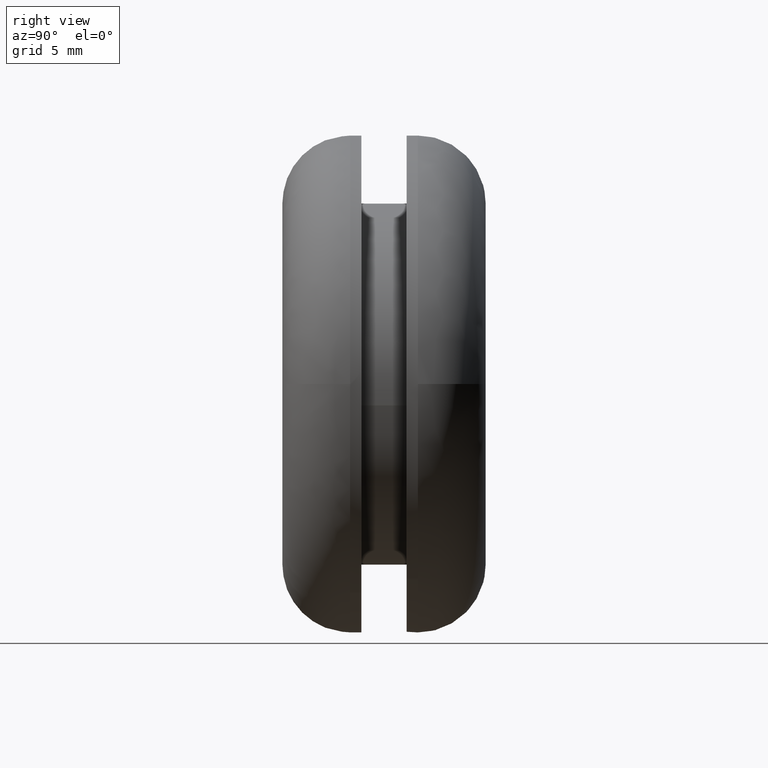
[diagram: clean part render]
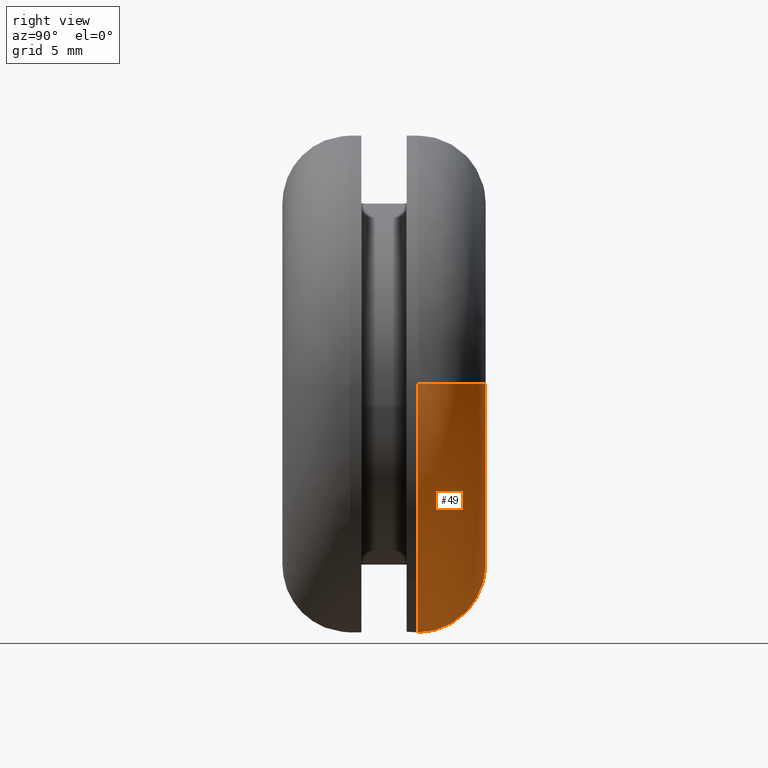
[diagram: same view with one face highlighted and labeled with its STEP entity id]
A machine part, right view. The second image highlights one B-rep face of the part: STEP entity #49.
In plain terms, the highlighted face is a freeform B-spline surface patch.
Its self-contained STEP definition (entity closure, byte-faithful):
#49=ADVANCED_FACE('',(#151),#150,.T.);
#150=( BOUNDED_SURFACE() B_SPLINE_SURFACE( 2,2,((#290,#291,#292,#293,#294),(#295,#296,#297,#298,#299),(#300,#301,#302,#303,#304),(#305,#306,#307,#308,#309),(#310,#311,#312,#313,#314)), .UNSPECIFIED.,.F.,.F.,.F.) B_SPLINE_SURFACE_WITH_KNOTS((3,2,3),(3,2,3),(-1.57079642759E+000,-1.04719683943E+000,2.13528948656E-006),(3.14159265359E+000,4.71238898038E+000,6.28318530718E+000), .UNSPECIFIED. ) GEOMETRIC_REPRESENTATION_ITEM() RATIONAL_B_SPLINE_SURFACE(((9.33012523951E-001,6.59739482618E-001,9.33012523951E-001,6.59739482618E-001,9.33012523951E-001),(9.33012511055E-001,6.59739473499E-001,9.33012511055E-001,6.59739473499E-001,9.33012511055E-001),(1.00000000000E+000,7.07106781187E-001,1.00000000000E+000,7.07106781187E-001,1.00000000000E+000),(8.66025047903E-001,6.12372184049E-001,8.66025047903E-001,6.12372184049E-001,8.66025047903E-001),(1.00000000000E+000,7.07106781187E-001,1.00000000000E+000,7.07106781187E-001,1.00000000000E+000))) REPRESENTATION_ITEM('') SURFACE() );
#151=FACE_OUTER_BOUND('',#315,.T.);
#290=CARTESIAN_POINT('',(7.99999969050E+000,9.00000000000E+000,-2.35157608223E-015));
#291=CARTESIAN_POINT('',(7.99999969050E+000,9.00000000000E+000,-7.99999969050E+000));
#292=CARTESIAN_POINT('',(-3.38807386922E-013,9.00000000000E+000,-7.99999969050E+000));
#293=CARTESIAN_POINT('',(-7.99999969050E+000,9.00000000000E+000,-7.99999969050E+000));
#294=CARTESIAN_POINT('',(-7.99999969050E+000,9.00000000000E+000,-3.92205991919E-016));
#295=CARTESIAN_POINT('',(8.80384857795E+000,9.00000008293E+000,-2.45001560900E-015));
#296=CARTESIAN_POINT('',(8.80384857795E+000,9.00000008293E+000,-8.80384857795E+000));
#297=CARTESIAN_POINT('',(-3.38905832270E-013,9.00000008293E+000,-8.80384857795E+000));
#298=CARTESIAN_POINT('',(-8.80384857795E+000,9.00000008293E+000,-8.80384857795E+000));
#299=CARTESIAN_POINT('',(-8.80384857795E+000,9.00000008293E+000,-2.93765827675E-016));
#300=CARTESIAN_POINT('',(9.50000184921E+000,8.59807514371E+000,-4.08001387975E-015));
#301=CARTESIAN_POINT('',(9.50000184921E+000,8.59807514371E+000,-9.50000184921E+000));
#302=CARTESIAN_POINT('',(-3.12323387531E-013,8.59807514371E+000,-9.50000184921E+000));
#303=CARTESIAN_POINT('',(-9.50000184922E+000,8.59807514371E+000,-9.50000184921E+000));
#304=CARTESIAN_POINT('',(-9.50000184922E+000,8.59807514371E+000,-1.75326135457E-015));
#305=CARTESIAN_POINT('',(1.10000036984E+001,7.73204724875E+000,-7.59217208004E-015));
#306=CARTESIAN_POINT('',(1.10000036984E+001,7.73204724875E+000,-1.10000036984E+001));
#307=CARTESIAN_POINT('',(-2.55046178745E-013,7.73204724875E+000,-1.10000036984E+001));
#308=CARTESIAN_POINT('',(-1.10000036984E+001,7.73204724875E+000,-1.10000036984E+001));
#309=CARTESIAN_POINT('',(-1.10000036984E+001,7.73204724875E+000,-4.89803719581E-015));
#310=CARTESIAN_POINT('',(1.10000000000E+001,5.99999359413E+000,-1.42490974619E-014));
#311=CARTESIAN_POINT('',(1.10000000000E+001,5.99999359413E+000,-1.10000000000E+001));
#312=CARTESIAN_POINT('',(-1.40124520038E-013,5.99999359413E+000,-1.10000000000E+001));
#313=CARTESIAN_POINT('',(-1.10000000000E+001,5.99999359413E+000,-1.10000000000E+001));
#314=CARTESIAN_POINT('',(-1.10000000000E+001,5.99999359413E+000,-1.15549634835E-014));
#315=EDGE_LOOP('',(#443,#444,#445,#446,#447,#448,#449,#450));
#443=ORIENTED_EDGE('',*,*,#531,.F.);
#444=ORIENTED_EDGE('',*,*,#532,.F.);
#445=ORIENTED_EDGE('',*,*,#533,.F.);
#446=ORIENTED_EDGE('',*,*,#534,.F.);
#447=ORIENTED_EDGE('',*,*,#526,.F.);
#448=ORIENTED_EDGE('',*,*,#502,.T.);
#449=ORIENTED_EDGE('',*,*,#504,.T.);
#450=ORIENTED_EDGE('',*,*,#530,.T.);
#502=EDGE_CURVE('',#625,#626,#627,.T.);
#504=EDGE_CURVE('',#626,#633,#640,.T.);
#526=EDGE_CURVE('',#625,#789,#790,.T.);
#530=EDGE_CURVE('',#633,#810,#817,.T.);
#531=EDGE_CURVE('',#823,#810,#824,.T.);
#532=EDGE_CURVE('',#830,#823,#831,.T.);
#533=EDGE_CURVE('',#837,#830,#838,.T.);
#534=EDGE_CURVE('',#789,#837,#844,.T.);
#625=VERTEX_POINT('',#946);
#626=VERTEX_POINT('',#947);
#627=CIRCLE('',#951,8.00000000055E+000);
#633=VERTEX_POINT('',#952);
#640=CIRCLE('',#960,8.00000000055E+000);
#789=VERTEX_POINT('',#1054);
#790=(BOUNDED_CURVE() B_SPLINE_CURVE(2,(#1055,#1056,#1057,#1058,#1059),.UNSPECIFIED.,.F.,.F.) B_SPLINE_CURVE_WITH_KNOTS((3,2,3),(-1.57079631639E+000,-1.04719683943E+000,2.12488549941E-006),.UNSPECIFIED.) CURVE() GEOMETRIC_REPRESENTATION_ITEM() RATIONAL_B_SPLINE_CURVE((9.33012523951E-001,9.33012525282E-001,1.00000000000E+000,8.66025047903E-001,1.00000000000E+000)) REPRESENTATION_ITEM('') );
#810=VERTEX_POINT('',#1070);
#817=(BOUNDED_CURVE() B_SPLINE_CURVE(2,(#1075,#1076,#1077,#1078,#1079),.UNSPECIFIED.,.F.,.F.) B_SPLINE_CURVE_WITH_KNOTS((3,2,3),(-1.57079642759E+000,-1.04719683943E+000,2.13528948656E-006),.UNSPECIFIED.) CURVE() GEOMETRIC_REPRESENTATION_ITEM() RATIONAL_B_SPLINE_CURVE((9.33012523951E-001,9.33012511055E-001,1.00000000000E+000,8.66025047903E-001,1.00000000000E+000)) REPRESENTATION_ITEM('') );
#823=VERTEX_POINT('',#1080);
#824=CIRCLE('',#1084,1.10000000000E+001);
#830=VERTEX_POINT('',#1085);
#831=CIRCLE('',#1089,1.10000000000E+001);
#837=VERTEX_POINT('',#1090);
#838=CIRCLE('',#1094,1.10000000000E+001);
#844=CIRCLE('',#1098,1.10000000000E+001);
#946=CARTESIAN_POINT('',(-8.00000000080E+000,9.00000000000E+000,-1.21271826859E-007));
#947=CARTESIAN_POINT('',(-4.99600361081E-015,9.00000000000E+000,-8.00000000111E+000));
#948=CARTESIAN_POINT('',(-2.50963250181E-010,9.00000000000E+000,-5.53298740158E-010));
#949=DIRECTION('',(2.71934273453E-016,-1.00000000000E+000,2.33938667008E-015));
#950=DIRECTION('',(3.13701703503E-011,-2.33938667007E-015,-1.00000000000E+000));
#951=AXIS2_PLACEMENT_3D('',#948,#949,#950);
#952=CARTESIAN_POINT('',(8.00000000030E+000,9.00000000000E+000,3.98535176652E-008));
#957=CARTESIAN_POINT('',(-2.50963250181E-010,9.00000000000E+000,-5.53298740158E-010));
#958=DIRECTION('',(2.71934273453E-016,-1.00000000000E+000,2.33938667008E-015));
#959=DIRECTION('',(3.13701703503E-011,-2.33938667007E-015,-1.00000000000E+000));
#960=AXIS2_PLACEMENT_3D('',#957,#958,#959);
#1054=CARTESIAN_POINT('',(-1.10000000000E+001,5.99999363508E+000,4.05085390000E-008));
#1055=CARTESIAN_POINT('',(-8.00000003194E+000,9.00000000000E+000,-3.92205950106E-016));
#1056=CARTESIAN_POINT('',(-8.80384873642E+000,8.99999999144E+000,-2.93766159899E-016));
#1057=CARTESIAN_POINT('',(-9.50000184922E+000,8.59807514371E+000,-1.75326135457E-015));
#1058=CARTESIAN_POINT('',(-1.10000036984E+001,7.73204724875E+000,-4.89803719581E-015));
#1059=CARTESIAN_POINT('',(-1.10000000000E+001,5.99999359413E+000,-1.15549634835E-014));
#1070=CARTESIAN_POINT('',(1.10000000000E+001,5.99999394488E+000,1.19646067771E-005));
#1075=CARTESIAN_POINT('',(7.99999969050E+000,9.00000000000E+000,-2.35157608223E-015));
#1076=CARTESIAN_POINT('',(8.80384857795E+000,9.00000008293E+000,-2.45001560900E-015));
#1077=CARTESIAN_POINT('',(9.50000184921E+000,8.59807514371E+000,-4.08001387975E-015));
#1078=CARTESIAN_POINT('',(1.10000036984E+001,7.73204724875E+000,-7.59217208004E-015));
#1079=CARTESIAN_POINT('',(1.10000000000E+001,5.99999359413E+000,-1.42490974619E-014));
#1080=CARTESIAN_POINT('',(1.09264287962E+001,5.99999359413E+000,-1.27009990178E+000));
#1081=CARTESIAN_POINT('',(-2.55884202716E-011,5.99999679707E+000,9.14290865239E-012));
#1082=DIRECTION('',(-2.59289933366E-007,-1.00000000000E+000,2.91175781390E-007));
#1083=DIRECTION('',(-9.93311708750E-001,2.91175938714E-007,1.15463627435E-001));
#1084=AXIS2_PLACEMENT_3D('',#1081,#1082,#1083);
#1085=CARTESIAN_POINT('',(6.84766100301E+000,5.99999706464E+000,-8.60868972537E+000));
#1086=CARTESIAN_POINT('',(-4.77307082747E-012,5.99999679707E+000,-1.23838717059E-011));
#1087=DIRECTION('',(-3.26982928355E-007,-1.00000000000E+000,-2.91175761482E-007));
#1088=DIRECTION('',(-4.33915529770E-013,-2.91175761482E-007,1.00000000000E+000));
#1089=AXIS2_PLACEMENT_3D('',#1086,#1087,#1088);
#1090=CARTESIAN_POINT('',(0.00000000000E+000,6.00000000000E+000,-1.10000000000E+001));
#1091=CARTESIAN_POINT('',(-4.77307082747E-012,5.99999679707E+000,-1.23838717059E-011));
#1092=DIRECTION('',(-3.26982928355E-007,-1.00000000000E+000,-2.91175761482E-007));
#1093=DIRECTION('',(-4.33915529770E-013,-2.91175761482E-007,1.00000000000E+000));
#1094=AXIS2_PLACEMENT_3D('',#1091,#1092,#1093);
#1095=CARTESIAN_POINT('',(3.08730818688E-012,5.99999681754E+000,-1.04218855768E-011));
#1096=DIRECTION('',(2.89314394325E-007,-1.00000000000E+000,-2.89314395624E-007));
#1097=DIRECTION('',(1.00000000000E+000,2.89314395391E-007,-3.68354189869E-009));
#1098=AXIS2_PLACEMENT_3D('',#1095,#1096,#1097);